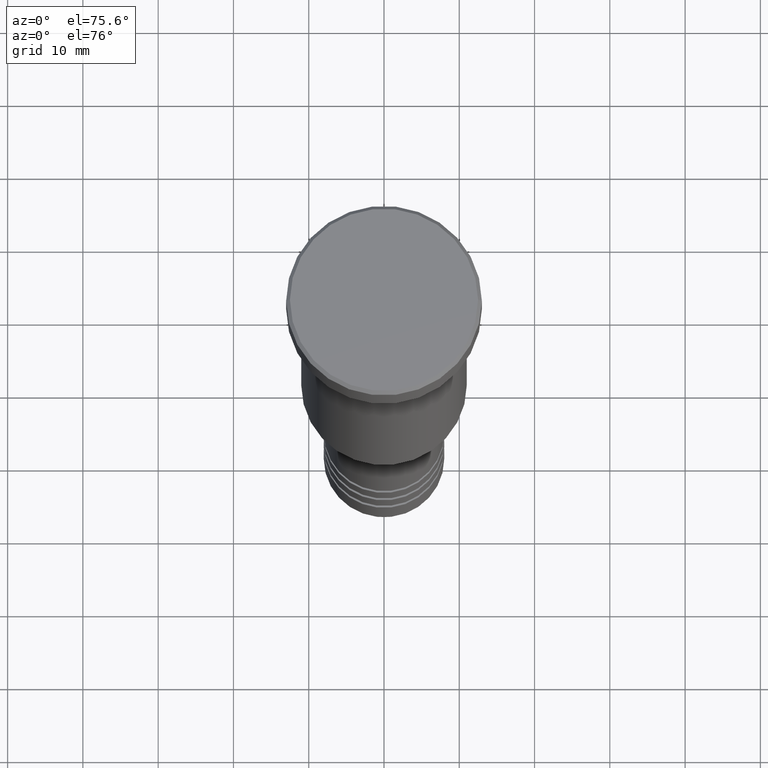
[diagram: clean part render]
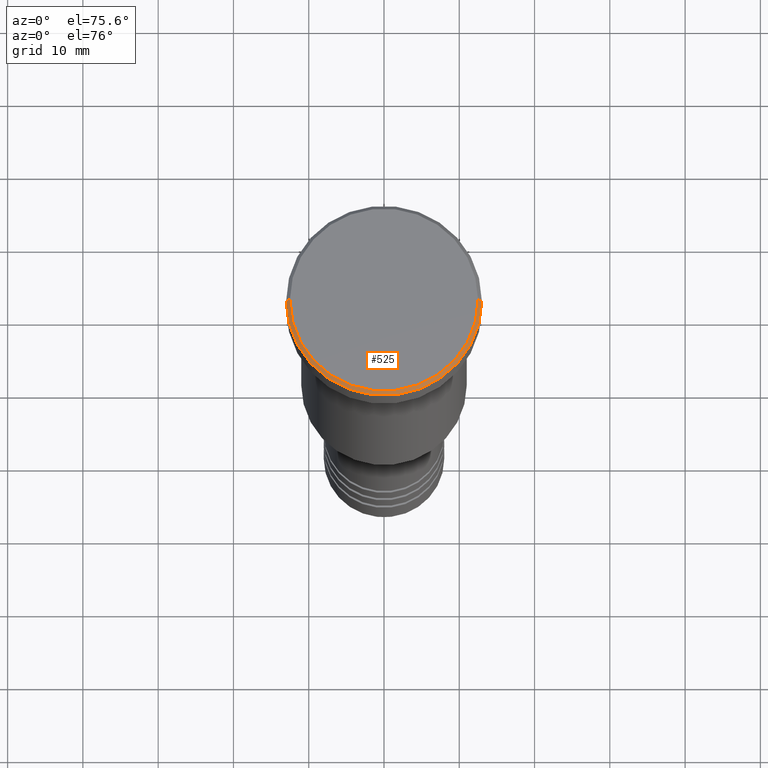
[diagram: same view with one face highlighted and labeled with its STEP entity id]
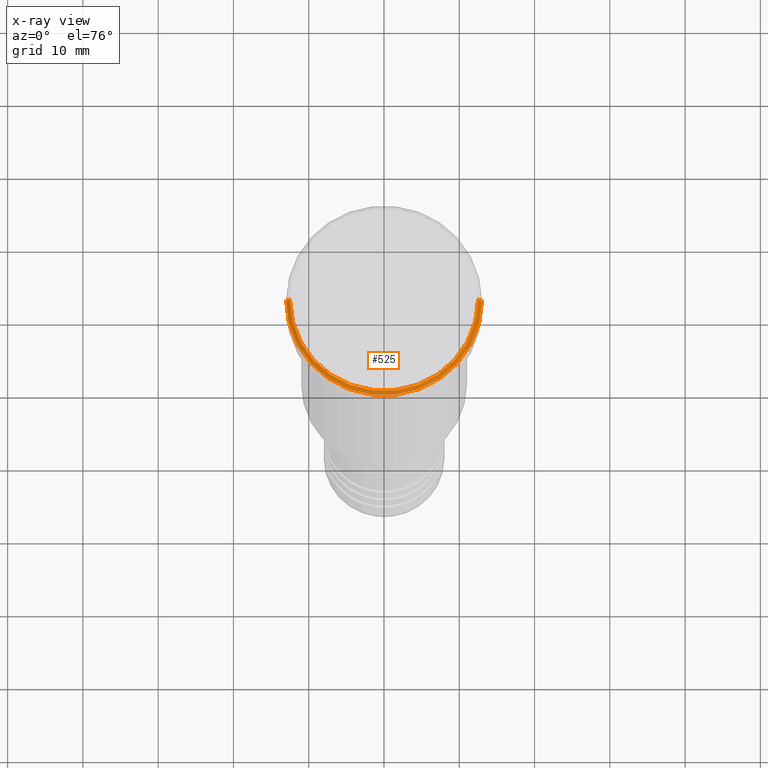
[diagram: x-ray of the same camera — body ghosted, the highlighted face saturated]
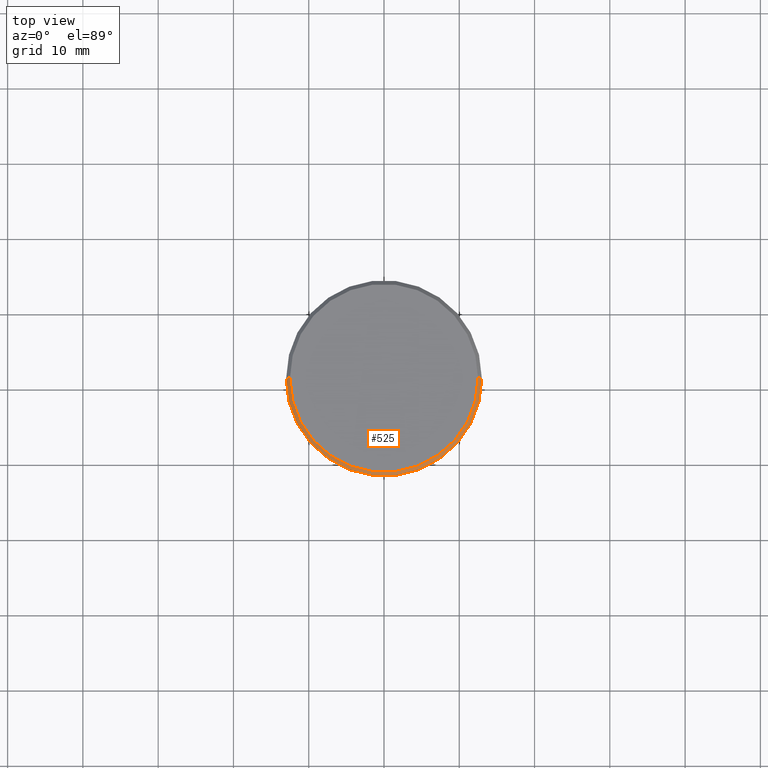
[diagram: same view with one face highlighted and labeled with its STEP entity id]
A machine part, auxiliary view. The second image highlights one B-rep face of the part: STEP entity #525.
The next image is the same camera in x-ray: the body ghosted, the highlighted face saturated — about 0% of this face is hidden behind the body in this view.
A second angle (top view) of the same face is appended — the face is thin or edge-on in the first view.
In plain terms, the highlighted conical surface has half-angle 45 deg.
Its self-contained STEP definition (entity closure, byte-faithful):
#52 = CIRCLE ( 'NONE', #312, 13.00000000000000000 ) ;
#66 = DIRECTION ( 'NONE',  ( 1.000000000000000000, 0.000000000000000000, 0.000000000000000000 ) ) ;
#76 = CARTESIAN_POINT ( 'NONE',  ( 12.49999999999999645, 1.530808498934191127E-15, 0.000000000000000000 ) ) ;
#125 = AXIS2_PLACEMENT_3D ( 'NONE', #259, #1004, #905 ) ;
#173 = CARTESIAN_POINT ( 'NONE',  ( -12.49999999999999645, 0.000000000000000000, 0.000000000000000000 ) ) ;
#218 = CONICAL_SURFACE ( 'NONE', #537, 12.49999999999999645, 0.7853981633974431720 ) ;
#236 = EDGE_CURVE ( 'NONE', #851, #769, #52, .T. ) ;
#258 = ORIENTED_EDGE ( 'NONE', *, *, #236, .F. ) ;
#259 = CARTESIAN_POINT ( 'NONE',  ( 0.000000000000000000, 0.000000000000000000, 0.000000000000000000 ) ) ;
#312 = AXIS2_PLACEMENT_3D ( 'NONE', #966, #892, #66 ) ;
#319 = ORIENTED_EDGE ( 'NONE', *, *, #519, .T. ) ;
#358 = DIRECTION ( 'NONE',  ( 0.7071067811865439090, 8.659560562354889717E-17, -0.7071067811865512365 ) ) ;
#361 = ORIENTED_EDGE ( 'NONE', *, *, #871, .F. ) ;
#368 = CARTESIAN_POINT ( 'NONE',  ( 12.49999999999999645, 1.561424668912875111E-15, 0.000000000000000000 ) ) ;
#370 = VECTOR ( 'NONE', #483, 1000.000000000000000 ) ;
#412 = DIRECTION ( 'NONE',  ( 0.000000000000000000, 0.000000000000000000, -1.000000000000000000 ) ) ;
#422 = VERTEX_POINT ( 'NONE', #368 ) ;
#473 = FACE_OUTER_BOUND ( 'NONE', #1147, .T. ) ;
#483 = DIRECTION ( 'NONE',  ( -0.7071067811865439090, 0.000000000000000000, -0.7071067811865512365 ) ) ;
#519 = EDGE_CURVE ( 'NONE', #827, #769, #765, .T. ) ;
#525 = ADVANCED_FACE ( 'NONE', ( #473 ), #218, .T. ) ;
#537 = AXIS2_PLACEMENT_3D ( 'NONE', #1120, #412, #855 ) ;
#641 = CIRCLE ( 'NONE', #125, 12.49999999999999645 ) ;
#681 = VECTOR ( 'NONE', #358, 1000.000000000000000 ) ;
#736 = LINE ( 'NONE', #76, #681 ) ;
#765 = LINE ( 'NONE', #1023, #370 ) ;
#769 = VERTEX_POINT ( 'NONE', #974 ) ;
#827 = VERTEX_POINT ( 'NONE', #173 ) ;
#851 = VERTEX_POINT ( 'NONE', #1175 ) ;
#855 = DIRECTION ( 'NONE',  ( -1.000000000000000000, 0.000000000000000000, 0.000000000000000000 ) ) ;
#871 = EDGE_CURVE ( 'NONE', #422, #851, #736, .T. ) ;
#879 = ORIENTED_EDGE ( 'NONE', *, *, #891, .F. ) ;
#891 = EDGE_CURVE ( 'NONE', #827, #422, #641, .T. ) ;
#892 = DIRECTION ( 'NONE',  ( 0.000000000000000000, 0.000000000000000000, -1.000000000000000000 ) ) ;
#905 = DIRECTION ( 'NONE',  ( 1.000000000000000000, 0.000000000000000000, 0.000000000000000000 ) ) ;
#966 = CARTESIAN_POINT ( 'NONE',  ( 0.000000000000000000, 0.000000000000000000, -0.5000000000000073275 ) ) ;
#974 = CARTESIAN_POINT ( 'NONE',  ( -13.00000000000000000, 1.592040838891559095E-15, -0.5000000000000073275 ) ) ;
#1004 = DIRECTION ( 'NONE',  ( -0.000000000000000000, -0.000000000000000000, 1.000000000000000000 ) ) ;
#1023 = CARTESIAN_POINT ( 'NONE',  ( -12.49999999999999645, 0.000000000000000000, 0.000000000000000000 ) ) ;
#1120 = CARTESIAN_POINT ( 'NONE',  ( 0.000000000000000000, 0.000000000000000000, 0.000000000000000000 ) ) ;
#1147 = EDGE_LOOP ( 'NONE', ( #361, #879, #319, #258 ) ) ;
#1175 = CARTESIAN_POINT ( 'NONE',  ( 13.00000000000000000, 0.000000000000000000, -0.5000000000000073275 ) ) ;